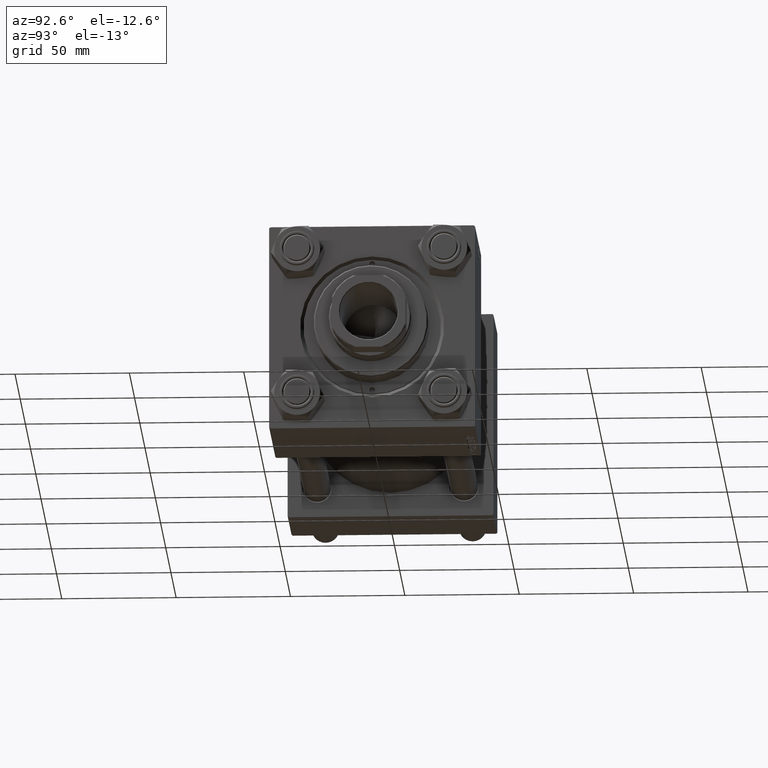
[diagram: clean part render]
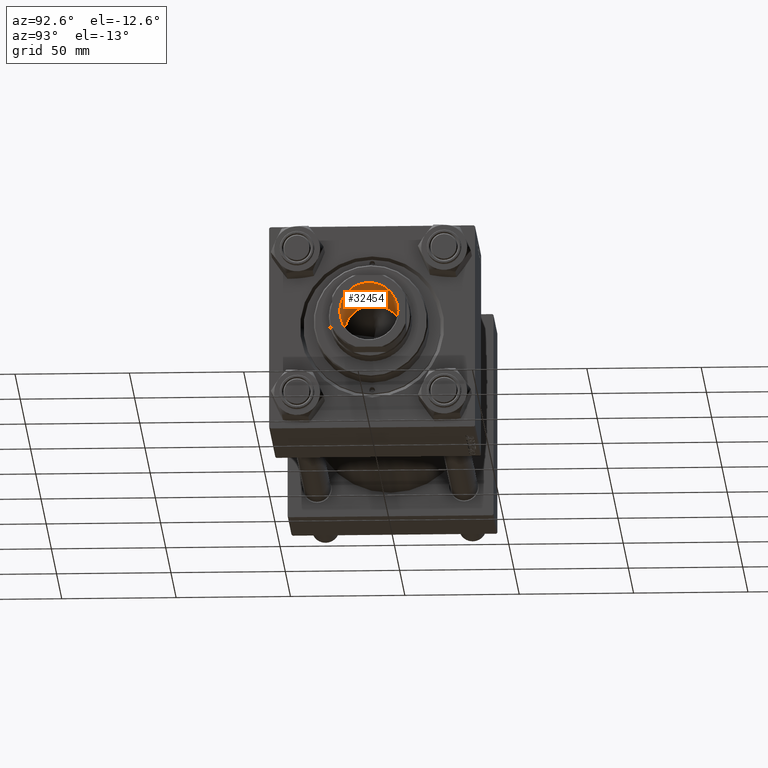
[diagram: same view with one face highlighted and labeled with its STEP entity id]
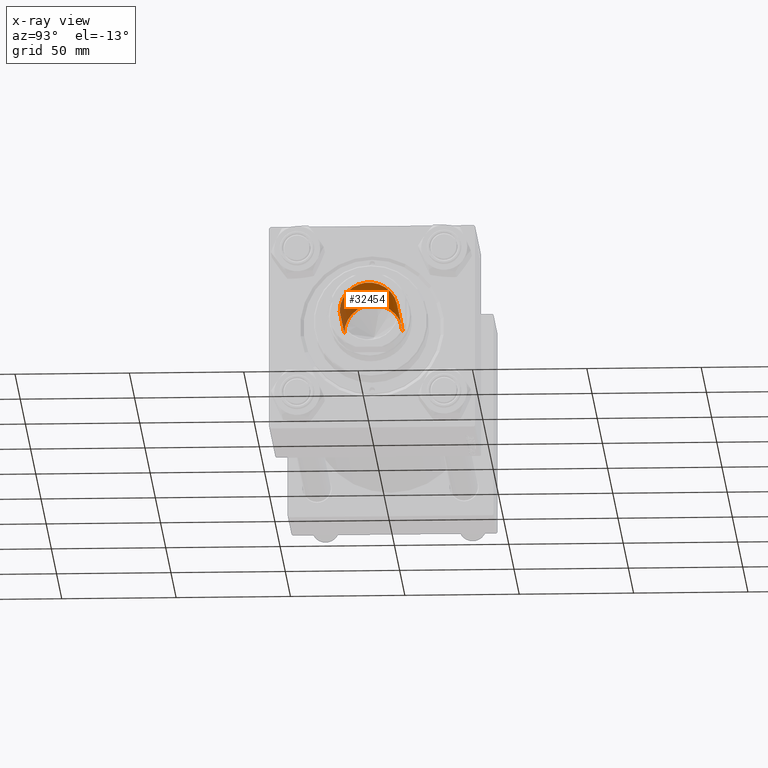
[diagram: x-ray of the same camera — body ghosted, the highlighted face saturated]
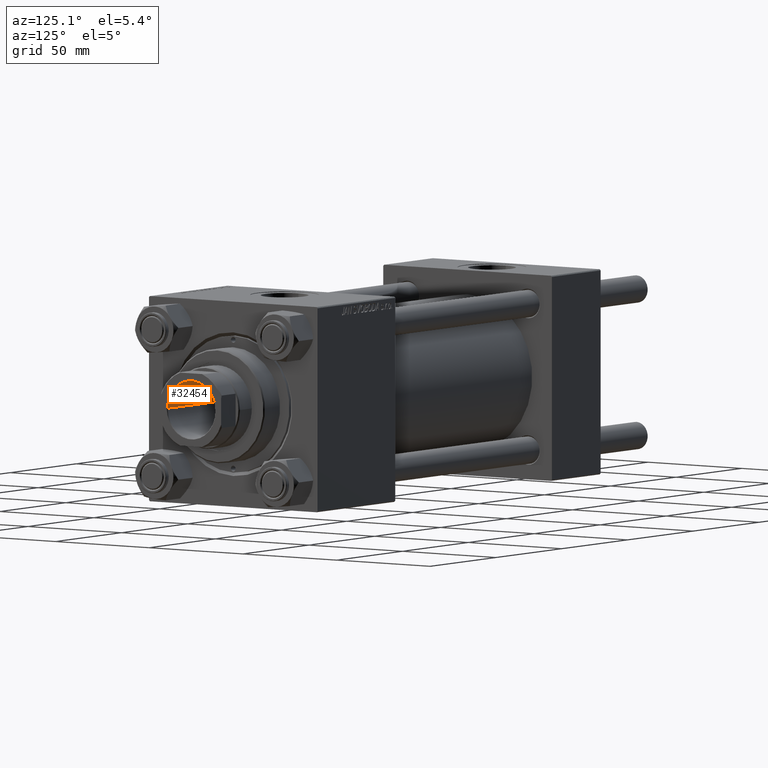
[diagram: same view with one face highlighted and labeled with its STEP entity id]
A machine part, auxiliary view. The second image highlights one B-rep face of the part: STEP entity #32454.
The next image is the same camera in x-ray: the body ghosted, the highlighted face saturated — about 1% of this face is hidden behind the body in this view.
A second angle (auxiliary view) of the same face is appended — the face is thin or edge-on in the first view.
In plain terms, the highlighted cylindrical surface (edge-blend (fillet) strip) has radius 12.75 mm, axis along (1, 0, -0).
Its self-contained STEP definition (entity closure, byte-faithful):
#671 = ORIENTED_EDGE ( 'NONE', *, *, #22094, .T. ) ;
#1406 = DIRECTION ( 'NONE',  ( -0.000000000000000000, -0.000000000000000000, 1.000000000000000000 ) ) ;
#2870 = CARTESIAN_POINT ( 'NONE',  ( 12.74999999999998934, 0.000000000000000000, 165.0000000000000284 ) ) ;
#3775 = DIRECTION ( 'NONE',  ( 1.000000000000000000, 0.000000000000000000, 0.000000000000000000 ) ) ;
#4018 = CARTESIAN_POINT ( 'NONE',  ( 0.000000000000000000, 0.000000000000000000, 210.0000000000000284 ) ) ;
#4088 = VECTOR ( 'NONE', #26200, 1000.000000000000000 ) ;
#4095 = VERTEX_POINT ( 'NONE', #39247 ) ;
#4131 = CARTESIAN_POINT ( 'NONE',  ( -12.74999999999999112, 1.561424668912874125E-15, 209.7000000000000171 ) ) ;
#7108 = VERTEX_POINT ( 'NONE', #2870 ) ;
#9821 = DIRECTION ( 'NONE',  ( 0.000000000000000000, 0.000000000000000000, 1.000000000000000000 ) ) ;
#11339 = FACE_OUTER_BOUND ( 'NONE', #46647, .T. ) ;
#11927 = DIRECTION ( 'NONE',  ( -0.000000000000000000, -0.000000000000000000, 1.000000000000000000 ) ) ;
#12270 = CIRCLE ( 'NONE', #37268, 12.74999999999999112 ) ;
#14980 = EDGE_CURVE ( 'NONE', #7108, #39313, #46280, .T. ) ;
#15884 = DIRECTION ( 'NONE',  ( -0.000000000000000000, -0.000000000000000000, 1.000000000000000000 ) ) ;
#17280 = CARTESIAN_POINT ( 'NONE',  ( 12.74999999999999112, 0.000000000000000000, 209.7000000000000171 ) ) ;
#17643 = CARTESIAN_POINT ( 'NONE',  ( 0.000000000000000000, 0.000000000000000000, 209.7000000000000171 ) ) ;
#19108 = CARTESIAN_POINT ( 'NONE',  ( -12.74999999999999112, 1.561424668912874125E-15, 210.0000000000000284 ) ) ;
#19358 = LINE ( 'NONE', #19108, #4088 ) ;
#20711 = ORIENTED_EDGE ( 'NONE', *, *, #49015, .T. ) ;
#22094 = EDGE_CURVE ( 'NONE', #43616, #39313, #12270, .T. ) ;
#24417 = CARTESIAN_POINT ( 'NONE',  ( 0.000000000000000000, 0.000000000000000000, 165.0000000000000284 ) ) ;
#24521 = AXIS2_PLACEMENT_3D ( 'NONE', #24417, #1406, #43087 ) ;
#26200 = DIRECTION ( 'NONE',  ( -0.000000000000000000, -0.000000000000000000, 1.000000000000000000 ) ) ;
#27598 = VECTOR ( 'NONE', #11927, 1000.000000000000000 ) ;
#27604 = CARTESIAN_POINT ( 'NONE',  ( 12.74999999999999112, 0.000000000000000000, 210.0000000000000284 ) ) ;
#30618 = EDGE_CURVE ( 'NONE', #4095, #7108, #42229, .T. ) ;
#32454 = ADVANCED_FACE ( 'NONE', ( #11339 ), #41913, .F. ) ;
#34059 = ORIENTED_EDGE ( 'NONE', *, *, #14980, .F. ) ;
#36347 = DIRECTION ( 'NONE',  ( 1.000000000000000000, 0.000000000000000000, 0.000000000000000000 ) ) ;
#37268 = AXIS2_PLACEMENT_3D ( 'NONE', #17643, #9821, #36347 ) ;
#38295 = AXIS2_PLACEMENT_3D ( 'NONE', #4018, #15884, #3775 ) ;
#38801 = ORIENTED_EDGE ( 'NONE', *, *, #30618, .F. ) ;
#39247 = CARTESIAN_POINT ( 'NONE',  ( -12.74999999999998934, 1.561424668912873928E-15, 165.0000000000000284 ) ) ;
#39313 = VERTEX_POINT ( 'NONE', #17280 ) ;
#41913 = CYLINDRICAL_SURFACE ( 'NONE', #38295, 12.74999999999999112 ) ;
#42229 = CIRCLE ( 'NONE', #24521, 12.74999999999998934 ) ;
#43087 = DIRECTION ( 'NONE',  ( 1.000000000000000000, 0.000000000000000000, 0.000000000000000000 ) ) ;
#43616 = VERTEX_POINT ( 'NONE', #4131 ) ;
#46280 = LINE ( 'NONE', #27604, #27598 ) ;
#46647 = EDGE_LOOP ( 'NONE', ( #38801, #20711, #671, #34059 ) ) ;
#49015 = EDGE_CURVE ( 'NONE', #4095, #43616, #19358, .T. ) ;